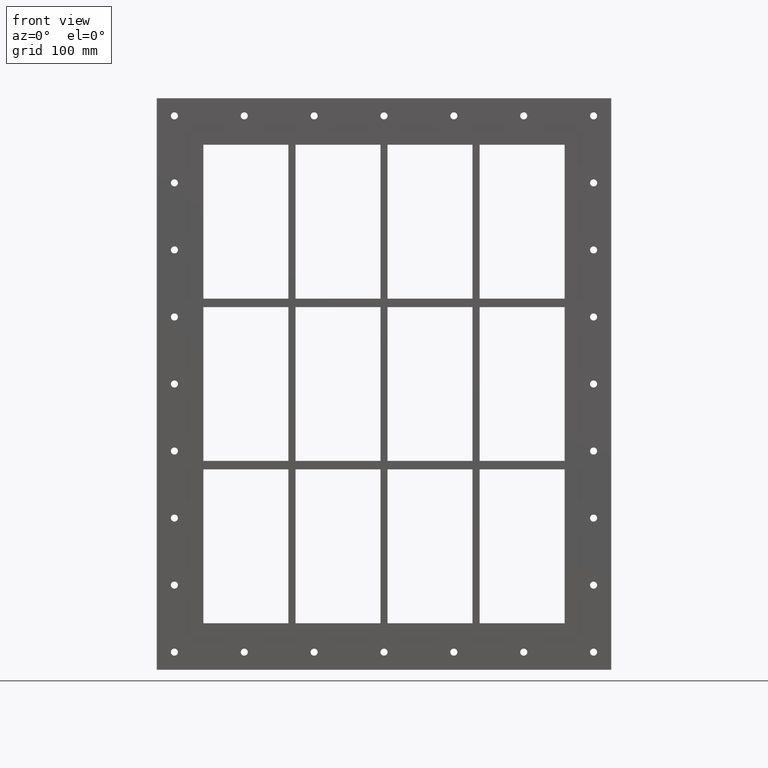
[diagram: clean part render]
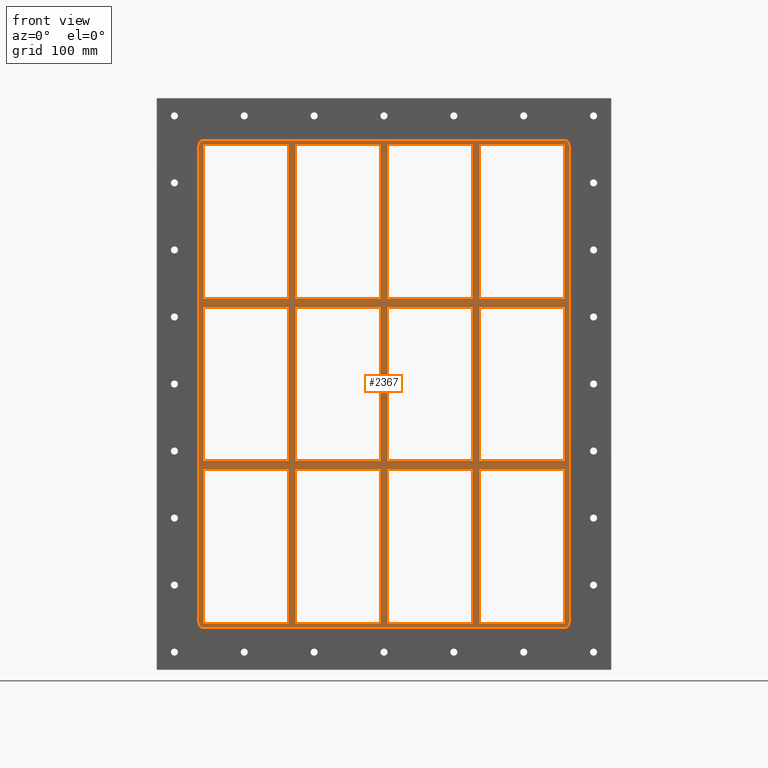
[diagram: same view with one face highlighted and labeled with its STEP entity id]
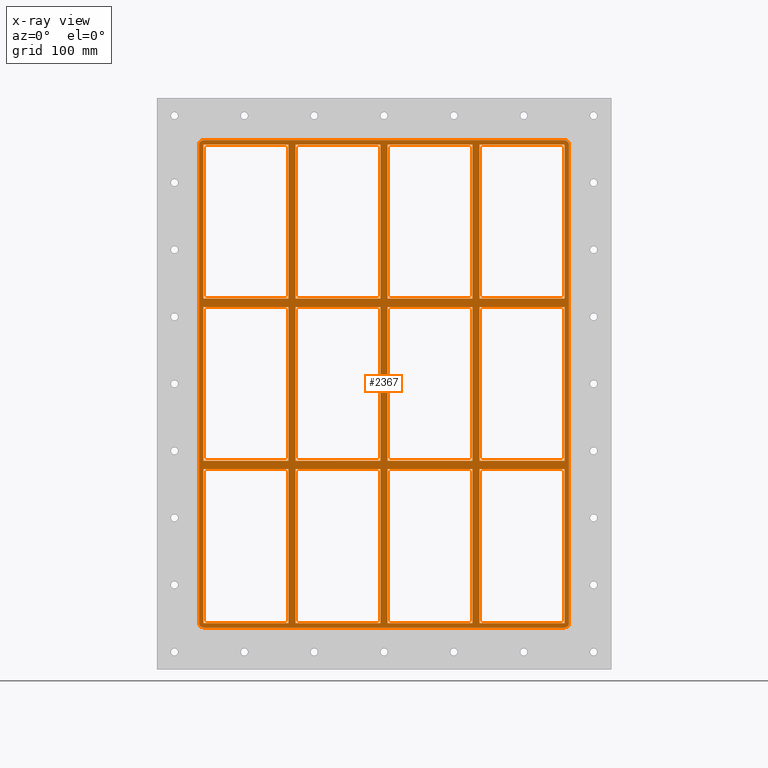
[diagram: x-ray of the same camera — body ghosted, the highlighted face saturated]
A machine part, front view. The second image highlights one B-rep face of the part: STEP entity #2367.
The next image is the same camera in x-ray: the body ghosted, the highlighted face saturated — about 0% of this face is hidden behind the body in this view.
In plain terms, the highlighted planar face has unit normal (0, 1, 0).
Its self-contained STEP definition (entity closure, byte-faithful):
#857=CARTESIAN_POINT('',(-135.50000000000139,-3.0,108.99999999999068));
#858=VERTEX_POINT('',#857);
#867=CARTESIAN_POINT('',(-255.99999999999972,-3.0,108.99999999999068));
#868=VERTEX_POINT('',#867);
#869=CARTESIAN_POINT('',(-135.50000000000136,-3.0,108.99999999999069));
#870=DIRECTION('',(-1.0,0.0,0.0));
#871=VECTOR('',#870,120.49999999999841);
#872=LINE('',#869,#871);
#873=EDGE_CURVE('',#858,#868,#872,.T.);
#897=CARTESIAN_POINT('',(-5.000000000001386,-3.0,108.99999999999071));
#898=VERTEX_POINT('',#897);
#907=CARTESIAN_POINT('',(-125.49999999999272,-3.0,108.99999999999071));
#908=VERTEX_POINT('',#907);
#909=CARTESIAN_POINT('',(-5.000000000001364,-3.0,108.99999999999071));
#910=DIRECTION('',(-1.0,0.0,0.0));
#911=VECTOR('',#910,120.49999999999136);
#912=LINE('',#909,#911);
#913=EDGE_CURVE('',#898,#908,#912,.T.);
#939=CARTESIAN_POINT('',(135.50000000000728,-3.0,108.99999999999073));
#940=VERTEX_POINT('',#939);
#955=CARTESIAN_POINT('',(256.00000000000364,-3.0,108.99999999999075));
#956=VERTEX_POINT('',#955);
#963=CARTESIAN_POINT('',(256.00000000000364,-3.0,108.99999999999075));
#964=DIRECTION('',(-1.0,0.0,0.0));
#965=VECTOR('',#964,120.49999999999636);
#966=LINE('',#963,#965);
#967=EDGE_CURVE('',#956,#940,#966,.T.);
#977=CARTESIAN_POINT('',(125.49999999999862,-3.0,108.99999999999073));
#978=VERTEX_POINT('',#977);
#987=CARTESIAN_POINT('',(5.000000000007283,-3.0,108.99999999999071));
#988=VERTEX_POINT('',#987);
#989=CARTESIAN_POINT('',(125.49999999999864,-3.0,108.99999999999073));
#990=DIRECTION('',(-1.0,0.0,0.0));
#991=VECTOR('',#990,120.49999999999136);
#992=LINE('',#989,#991);
#993=EDGE_CURVE('',#978,#988,#992,.T.);
#1019=CARTESIAN_POINT('',(-135.50000000000139,-3.0,120.99999999999994));
#1020=VERTEX_POINT('',#1019);
#1035=CARTESIAN_POINT('',(-255.99999999999972,-3.0,120.99999999999994));
#1036=VERTEX_POINT('',#1035);
#1043=CARTESIAN_POINT('',(-255.99999999999972,-3.0,120.99999999999994));
#1044=DIRECTION('',(1.0,0.0,0.0));
#1045=VECTOR('',#1044,120.49999999999835);
#1046=LINE('',#1043,#1045);
#1047=EDGE_CURVE('',#1036,#1020,#1046,.T.);
#1057=CARTESIAN_POINT('',(135.50000000000728,-3.0,120.99999999999994));
#1058=VERTEX_POINT('',#1057);
#1067=CARTESIAN_POINT('',(255.99999999999997,-3.0,120.99999999999994));
#1068=VERTEX_POINT('',#1067);
#1069=CARTESIAN_POINT('',(135.50000000000733,-3.0,120.99999999999994));
#1070=DIRECTION('',(1.0,0.0,0.0));
#1071=VECTOR('',#1070,120.49999999999272);
#1072=LINE('',#1069,#1071);
#1073=EDGE_CURVE('',#1058,#1068,#1072,.T.);
#1099=CARTESIAN_POINT('',(-5.000000000001386,-3.0,120.99999999999994));
#1100=VERTEX_POINT('',#1099);
#1115=CARTESIAN_POINT('',(-125.49999999999272,-3.0,120.99999999999994));
#1116=VERTEX_POINT('',#1115);
#1123=CARTESIAN_POINT('',(-125.49999999999272,-3.0,120.99999999999994));
#1124=DIRECTION('',(1.0,0.0,0.0));
#1125=VECTOR('',#1124,120.49999999999136);
#1126=LINE('',#1123,#1125);
#1127=EDGE_CURVE('',#1116,#1100,#1126,.T.);
#1139=CARTESIAN_POINT('',(125.49999999999862,-3.0,120.99999999999994));
#1140=VERTEX_POINT('',#1139);
#1155=CARTESIAN_POINT('',(5.000000000007283,-3.0,120.99999999999994));
#1156=VERTEX_POINT('',#1155);
#1163=CARTESIAN_POINT('',(5.000000000007276,-3.0,120.99999999999994));
#1164=DIRECTION('',(1.0,0.0,0.0));
#1165=VECTOR('',#1164,120.49999999999136);
#1166=LINE('',#1163,#1165);
#1167=EDGE_CURVE('',#1156,#1140,#1166,.T.);
#1186=CARTESIAN_POINT('',(-256.00000000000006,-3.0,339.00000000000011));
#1187=VERTEX_POINT('',#1186);
#1194=CARTESIAN_POINT('',(-256.00000000000006,-3.0,120.99999999999997));
#1195=DIRECTION('',(0.0,0.0,1.0));
#1196=VECTOR('',#1195,218.00000000000014);
#1197=LINE('',#1194,#1196);
#1198=EDGE_CURVE('',#1036,#1187,#1197,.T.);
#1217=CARTESIAN_POINT('',(255.99999999999997,-3.0,-109.00000000000006));
#1218=VERTEX_POINT('',#1217);
#1225=CARTESIAN_POINT('',(256.00000000000006,-3.0,108.99999999999076));
#1226=DIRECTION('',(0.0,0.0,-1.0));
#1227=VECTOR('',#1226,217.99999999999082);
#1228=LINE('',#1225,#1227);
#1229=EDGE_CURVE('',#956,#1218,#1228,.T.);
#1240=CARTESIAN_POINT('',(256.00000000000006,-3.0,339.00000000000011));
#1241=VERTEX_POINT('',#1240);
#1242=CARTESIAN_POINT('',(256.00000000000006,-3.0,339.00000000000011));
#1243=DIRECTION('',(0.0,0.0,-1.0));
#1244=VECTOR('',#1243,218.00000000000017);
#1245=LINE('',#1242,#1244);
#1246=EDGE_CURVE('',#1241,#1068,#1245,.T.);
#1271=CARTESIAN_POINT('',(125.49999999999856,-3.0,339.00000000000011));
#1272=VERTEX_POINT('',#1271);
#1273=CARTESIAN_POINT('',(125.49999999999861,-3.0,120.99999999999994));
#1274=DIRECTION('',(0.0,0.0,1.0));
#1275=VECTOR('',#1274,218.00000000000017);
#1276=LINE('',#1273,#1275);
#1277=EDGE_CURVE('',#1140,#1272,#1276,.T.);
#1310=CARTESIAN_POINT('',(135.50000000000728,-3.0,339.00000000000011));
#1311=VERTEX_POINT('',#1310);
#1318=CARTESIAN_POINT('',(135.50000000000728,-3.0,339.00000000000011));
#1319=DIRECTION('',(0.0,0.0,-1.0));
#1320=VECTOR('',#1319,218.00000000000017);
#1321=LINE('',#1318,#1320);
#1322=EDGE_CURVE('',#1311,#1058,#1321,.T.);
#1333=CARTESIAN_POINT('',(-5.000000000001439,-3.0,339.00000000000011));
#1334=VERTEX_POINT('',#1333);
#1335=CARTESIAN_POINT('',(-5.000000000001387,-3.0,120.99999999999994));
#1336=DIRECTION('',(0.0,0.0,1.0));
#1337=VECTOR('',#1336,218.00000000000017);
#1338=LINE('',#1335,#1337);
#1339=EDGE_CURVE('',#1100,#1334,#1338,.T.);
#1372=CARTESIAN_POINT('',(5.000000000007283,-3.0,339.00000000000011));
#1373=VERTEX_POINT('',#1372);
#1380=CARTESIAN_POINT('',(5.000000000007283,-3.0,339.00000000000011));
#1381=DIRECTION('',(0.0,0.0,-1.0));
#1382=VECTOR('',#1381,218.00000000000017);
#1383=LINE('',#1380,#1382);
#1384=EDGE_CURVE('',#1373,#1156,#1383,.T.);
#1395=CARTESIAN_POINT('',(-135.50000000000145,-3.0,339.00000000000011));
#1396=VERTEX_POINT('',#1395);
#1397=CARTESIAN_POINT('',(-135.50000000000139,-3.0,120.99999999999994));
#1398=DIRECTION('',(0.0,0.0,1.0));
#1399=VECTOR('',#1398,218.00000000000017);
#1400=LINE('',#1397,#1399);
#1401=EDGE_CURVE('',#1020,#1396,#1400,.T.);
#1434=CARTESIAN_POINT('',(-135.50000000000134,-3.0,-109.00000000000006));
#1435=VERTEX_POINT('',#1434);
#1442=CARTESIAN_POINT('',(-135.50000000000134,-3.0,-109.00000000000006));
#1443=DIRECTION('',(0.0,0.0,1.0));
#1444=VECTOR('',#1443,217.99999999999073);
#1445=LINE('',#1442,#1444);
#1446=EDGE_CURVE('',#1435,#858,#1445,.T.);
#1465=CARTESIAN_POINT('',(-125.49999999999272,-3.0,339.00000000000011));
#1466=VERTEX_POINT('',#1465);
#1473=CARTESIAN_POINT('',(-125.49999999999272,-3.0,339.00000000000011));
#1474=DIRECTION('',(0.0,0.0,-1.0));
#1475=VECTOR('',#1474,218.00000000000017);
#1476=LINE('',#1473,#1475);
#1477=EDGE_CURVE('',#1466,#1116,#1476,.T.);
#1831=CARTESIAN_POINT('',(125.49999999999868,-3.0,-109.00000000000006));
#1832=VERTEX_POINT('',#1831);
#1839=CARTESIAN_POINT('',(125.49999999999866,-3.0,-109.00000000000006));
#1840=DIRECTION('',(0.0,0.0,1.0));
#1841=VECTOR('',#1840,217.99999999999079);
#1842=LINE('',#1839,#1841);
#1843=EDGE_CURVE('',#1832,#978,#1842,.T.);
#1853=CARTESIAN_POINT('',(125.49999999999868,-3.0,-121.00000000000929));
#1854=VERTEX_POINT('',#1853);
#1862=CARTESIAN_POINT('',(125.49999999999872,-3.0,-339.0));
#1863=VERTEX_POINT('',#1862);
#1870=CARTESIAN_POINT('',(125.49999999999872,-3.0,-339.0));
#1871=DIRECTION('',(0.0,0.0,1.0));
#1872=VECTOR('',#1871,217.99999999999071);
#1873=LINE('',#1870,#1872);
#1874=EDGE_CURVE('',#1863,#1854,#1873,.T.);
#1885=CARTESIAN_POINT('',(135.50000000000728,-3.0,-109.00000000000006));
#1886=VERTEX_POINT('',#1885);
#1887=CARTESIAN_POINT('',(135.50000000000728,-3.0,108.99999999999073));
#1888=DIRECTION('',(0.0,0.0,-1.0));
#1889=VECTOR('',#1888,217.99999999999079);
#1890=LINE('',#1887,#1889);
#1891=EDGE_CURVE('',#940,#1886,#1890,.T.);
#1908=CARTESIAN_POINT('',(135.50000000000728,-3.0,-121.00000000000925));
#1909=VERTEX_POINT('',#1908);
#1916=CARTESIAN_POINT('',(135.50000000000728,-3.0,-338.99999999998414));
#1917=VERTEX_POINT('',#1916);
#1918=CARTESIAN_POINT('',(135.50000000000728,-3.0,-121.00000000000927));
#1919=DIRECTION('',(0.0,0.0,-1.0));
#1920=VECTOR('',#1919,217.99999999997482);
#1921=LINE('',#1918,#1920);
#1922=EDGE_CURVE('',#1909,#1917,#1921,.T.);
#1941=CARTESIAN_POINT('',(-5.000000000001333,-3.0,-109.00000000000006));
#1942=VERTEX_POINT('',#1941);
#1949=CARTESIAN_POINT('',(-5.000000000001333,-3.0,-109.00000000000006));
#1950=DIRECTION('',(0.0,0.0,1.0));
#1951=VECTOR('',#1950,217.99999999999079);
#1952=LINE('',#1949,#1951);
#1953=EDGE_CURVE('',#1942,#898,#1952,.T.);
#1963=CARTESIAN_POINT('',(-5.000000000001331,-3.0,-121.00000000000929));
#1964=VERTEX_POINT('',#1963);
#1972=CARTESIAN_POINT('',(-5.000000000001279,-3.0,-339.0));
#1973=VERTEX_POINT('',#1972);
#1980=CARTESIAN_POINT('',(-5.000000000001279,-3.0,-339.0));
#1981=DIRECTION('',(0.0,0.0,1.0));
#1982=VECTOR('',#1981,217.99999999999071);
#1983=LINE('',#1980,#1982);
#1984=EDGE_CURVE('',#1973,#1964,#1983,.T.);
#1995=CARTESIAN_POINT('',(5.000000000007283,-3.0,-109.00000000000006));
#1996=VERTEX_POINT('',#1995);
#1997=CARTESIAN_POINT('',(5.000000000007283,-3.0,108.99999999999071));
#1998=DIRECTION('',(0.0,0.0,-1.0));
#1999=VECTOR('',#1998,217.99999999999076);
#2000=LINE('',#1997,#1999);
#2001=EDGE_CURVE('',#988,#1996,#2000,.T.);
#2018=CARTESIAN_POINT('',(5.000000000007283,-3.0,-121.00000000000925));
#2019=VERTEX_POINT('',#2018);
#2026=CARTESIAN_POINT('',(5.000000000007283,-3.0,-338.99999999998414));
#2027=VERTEX_POINT('',#2026);
#2028=CARTESIAN_POINT('',(5.000000000007283,-3.0,-121.00000000000927));
#2029=DIRECTION('',(0.0,0.0,-1.0));
#2030=VECTOR('',#2029,217.99999999997482);
#2031=LINE('',#2028,#2030);
#2032=EDGE_CURVE('',#2019,#2027,#2031,.T.);
#2051=CARTESIAN_POINT('',(-125.49999999999272,-3.0,-338.99999999998414));
#2052=VERTEX_POINT('',#2051);
#2059=CARTESIAN_POINT('',(-5.000000000001279,-3.0,-339.0));
#2060=DIRECTION('',(-1.0,0.0,0.0));
#2061=VECTOR('',#2060,120.49999999999147);
#2062=LINE('',#2059,#2061);
#2063=EDGE_CURVE('',#1973,#2052,#2062,.T.);
#2076=CARTESIAN_POINT('',(125.49999999999874,-3.0,-339.0));
#2077=DIRECTION('',(-1.0,0.0,0.0));
#2078=VECTOR('',#2077,120.49999999999145);
#2079=LINE('',#2076,#2078);
#2080=EDGE_CURVE('',#1863,#2027,#2079,.T.);
#2091=CARTESIAN_POINT('',(256.00000000000006,-3.0,-339.0));
#2092=VERTEX_POINT('',#2091);
#2093=CARTESIAN_POINT('',(256.00000000000006,-3.0,-339.0));
#2094=DIRECTION('',(-1.0,0.0,0.0));
#2095=VECTOR('',#2094,120.49999999999275);
#2096=LINE('',#2093,#2095);
#2097=EDGE_CURVE('',#2092,#1917,#2096,.T.);
#2109=CARTESIAN_POINT('',(7.667306E-015,-3.0,-5.618789E-014));
#2110=DIRECTION('',(0.0,1.0,0.0));
#2111=DIRECTION('',(0.0,0.0,1.0));
#2112=AXIS2_PLACEMENT_3D('',#2109,#2110,#2111);
#2113=PLANE('',#2112);
#2114=CARTESIAN_POINT('',(262.00000000000006,-3.0,-339.00000000000006));
#2115=VERTEX_POINT('',#2114);
#2116=CARTESIAN_POINT('',(256.00000000000011,-3.0,-345.00000000000011));
#2117=VERTEX_POINT('',#2116);
#2118=CARTESIAN_POINT('',(256.00000000000011,-3.0,-339.00000000000006));
#2119=DIRECTION('',(0.0,1.0,0.0));
#2120=DIRECTION('',(0.707106781186539,0.0,-0.707106781186556));
#2121=AXIS2_PLACEMENT_3D('',#2118,#2119,#2120);
#2122=CIRCLE('',#2121,6.000000000000001);
#2123=EDGE_CURVE('',#2115,#2117,#2122,.T.);
#2124=ORIENTED_EDGE('',*,*,#2123,.F.);
#2125=CARTESIAN_POINT('',(262.00000000000006,-3.0,339.0));
#2126=VERTEX_POINT('',#2125);
#2127=CARTESIAN_POINT('',(262.00000000000006,-3.0,-339.0));
#2128=DIRECTION('',(0.0,0.0,1.0));
#2129=VECTOR('',#2128,678.0);
#2130=LINE('',#2127,#2129);
#2131=EDGE_CURVE('',#2115,#2126,#2130,.T.);
#2132=ORIENTED_EDGE('',*,*,#2131,.T.);
#2133=CARTESIAN_POINT('',(256.00000000000006,-3.0,345.0));
#2134=VERTEX_POINT('',#2133);
#2135=CARTESIAN_POINT('',(256.00000000000006,-3.0,339.0));
#2136=DIRECTION('',(0.0,1.0,0.0));
#2137=DIRECTION('',(0.707106781186543,0.0,0.707106781186552));
#2138=AXIS2_PLACEMENT_3D('',#2135,#2136,#2137);
#2139=CIRCLE('',#2138,6.0);
#2140=EDGE_CURVE('',#2134,#2126,#2139,.T.);
#2141=ORIENTED_EDGE('',*,*,#2140,.F.);
#2142=CARTESIAN_POINT('',(-256.0,-3.0,345.0));
#2143=VERTEX_POINT('',#2142);
#2144=CARTESIAN_POINT('',(256.0,-3.0,345.0));
#2145=DIRECTION('',(-1.0,0.0,0.0));
#2146=VECTOR('',#2145,512.0);
#2147=LINE('',#2144,#2146);
#2148=EDGE_CURVE('',#2134,#2143,#2147,.T.);
#2149=ORIENTED_EDGE('',*,*,#2148,.T.);
#2150=CARTESIAN_POINT('',(-262.0,-3.0,338.99999999999989));
#2151=VERTEX_POINT('',#2150);
#2152=CARTESIAN_POINT('',(-256.0,-3.0,338.99999999999989));
#2153=DIRECTION('',(0.0,1.0,0.0));
#2154=DIRECTION('',(-0.707106781186543,0.0,0.707106781186552));
#2155=AXIS2_PLACEMENT_3D('',#2152,#2153,#2154);
#2156=CIRCLE('',#2155,6.0);
#2157=EDGE_CURVE('',#2151,#2143,#2156,.T.);
#2158=ORIENTED_EDGE('',*,*,#2157,.F.);
#2159=CARTESIAN_POINT('',(-262.0,-3.0,-339.00000000000023));
#2160=VERTEX_POINT('',#2159);
#2161=CARTESIAN_POINT('',(-262.0,-3.0,338.99999999999989));
#2162=DIRECTION('',(0.0,0.0,-1.0));
#2163=VECTOR('',#2162,678.0);
#2164=LINE('',#2161,#2163);
#2165=EDGE_CURVE('',#2151,#2160,#2164,.T.);
#2166=ORIENTED_EDGE('',*,*,#2165,.T.);
#2167=CARTESIAN_POINT('',(-256.0,-3.0,-345.00000000000011));
#2168=VERTEX_POINT('',#2167);
#2169=CARTESIAN_POINT('',(-256.0,-3.0,-339.00000000000023));
#2170=DIRECTION('',(0.0,1.0,0.0));
#2171=DIRECTION('',(-0.707106781186552,0.0,-0.707106781186543));
#2172=AXIS2_PLACEMENT_3D('',#2169,#2170,#2171);
#2173=CIRCLE('',#2172,6.000000000000001);
#2174=EDGE_CURVE('',#2168,#2160,#2173,.T.);
#2175=ORIENTED_EDGE('',*,*,#2174,.F.);
#2176=CARTESIAN_POINT('',(-256.0,-3.0,-345.00000000000011));
#2177=DIRECTION('',(1.0,0.0,0.0));
#2178=VECTOR('',#2177,512.0);
#2179=LINE('',#2176,#2178);
#2180=EDGE_CURVE('',#2168,#2117,#2179,.T.);
#2181=ORIENTED_EDGE('',*,*,#2180,.T.);
#2182=EDGE_LOOP('',(#2124,#2132,#2141,#2149,#2158,#2166,#2175,#2181));
#2183=FACE_OUTER_BOUND('',#2182,.T.);
#2184=ORIENTED_EDGE('',*,*,#1198,.T.);
#2185=CARTESIAN_POINT('',(-256.00000000000006,-3.0,339.00000000000006));
#2186=DIRECTION('',(1.0,0.0,0.0));
#2187=VECTOR('',#2186,120.49999999999861);
#2188=LINE('',#2185,#2187);
#2189=EDGE_CURVE('',#1187,#1396,#2188,.T.);
#2190=ORIENTED_EDGE('',*,*,#2189,.T.);
#2191=ORIENTED_EDGE('',*,*,#1401,.F.);
#2192=ORIENTED_EDGE('',*,*,#1047,.F.);
#2193=EDGE_LOOP('',(#2184,#2190,#2191,#2192));
#2194=FACE_BOUND('',#2193,.T.);
#2195=ORIENTED_EDGE('',*,*,#1229,.T.);
#2196=CARTESIAN_POINT('',(135.50000000000733,-3.0,-109.00000000000006));
#2197=DIRECTION('',(1.0,0.0,0.0));
#2198=VECTOR('',#2197,120.49999999999272);
#2199=LINE('',#2196,#2198);
#2200=EDGE_CURVE('',#1886,#1218,#2199,.T.);
#2201=ORIENTED_EDGE('',*,*,#2200,.F.);
#2202=ORIENTED_EDGE('',*,*,#1891,.F.);
#2203=ORIENTED_EDGE('',*,*,#967,.F.);
#2204=EDGE_LOOP('',(#2195,#2201,#2202,#2203));
#2205=FACE_BOUND('',#2204,.T.);
#2206=ORIENTED_EDGE('',*,*,#1843,.F.);
#2207=CARTESIAN_POINT('',(5.000000000007276,-3.0,-109.00000000000006));
#2208=DIRECTION('',(1.0,0.0,0.0));
#2209=VECTOR('',#2208,120.49999999999142);
#2210=LINE('',#2207,#2209);
#2211=EDGE_CURVE('',#1996,#1832,#2210,.T.);
#2212=ORIENTED_EDGE('',*,*,#2211,.F.);
#2213=ORIENTED_EDGE('',*,*,#2001,.F.);
#2214=ORIENTED_EDGE('',*,*,#993,.F.);
#2215=EDGE_LOOP('',(#2206,#2212,#2213,#2214));
#2216=FACE_BOUND('',#2215,.T.);
#2217=ORIENTED_EDGE('',*,*,#1953,.F.);
#2218=CARTESIAN_POINT('',(-125.49999999999272,-3.0,-109.00000000000006));
#2219=VERTEX_POINT('',#2218);
#2220=CARTESIAN_POINT('',(-125.49999999999272,-3.0,-109.00000000000006));
#2221=DIRECTION('',(1.0,0.0,0.0));
#2222=VECTOR('',#2221,120.49999999999139);
#2223=LINE('',#2220,#2222);
#2224=EDGE_CURVE('',#2219,#1942,#2223,.T.);
#2225=ORIENTED_EDGE('',*,*,#2224,.F.);
#2226=CARTESIAN_POINT('',(-125.49999999999272,-3.0,108.99999999999071));
#2227=DIRECTION('',(0.0,0.0,-1.0));
#2228=VECTOR('',#2227,217.99999999999076);
#2229=LINE('',#2226,#2228);
#2230=EDGE_CURVE('',#908,#2219,#2229,.T.);
#2231=ORIENTED_EDGE('',*,*,#2230,.F.);
#2232=ORIENTED_EDGE('',*,*,#913,.F.);
#2233=EDGE_LOOP('',(#2217,#2225,#2231,#2232));
#2234=FACE_BOUND('',#2233,.T.);
#2235=ORIENTED_EDGE('',*,*,#1167,.F.);
#2236=ORIENTED_EDGE('',*,*,#1384,.F.);
#2237=CARTESIAN_POINT('',(5.000000000007276,-3.0,339.00000000000006));
#2238=DIRECTION('',(1.0,0.0,0.0));
#2239=VECTOR('',#2238,120.49999999999127);
#2240=LINE('',#2237,#2239);
#2241=EDGE_CURVE('',#1373,#1272,#2240,.T.);
#2242=ORIENTED_EDGE('',*,*,#2241,.T.);
#2243=ORIENTED_EDGE('',*,*,#1277,.F.);
#2244=EDGE_LOOP('',(#2235,#2236,#2242,#2243));
#2245=FACE_BOUND('',#2244,.T.);
#2246=ORIENTED_EDGE('',*,*,#1127,.F.);
#2247=ORIENTED_EDGE('',*,*,#1477,.F.);
#2248=CARTESIAN_POINT('',(-125.49999999999272,-3.0,339.00000000000006));
#2249=DIRECTION('',(1.0,0.0,0.0));
#2250=VECTOR('',#2249,120.49999999999127);
#2251=LINE('',#2248,#2250);
#2252=EDGE_CURVE('',#1466,#1334,#2251,.T.);
#2253=ORIENTED_EDGE('',*,*,#2252,.T.);
#2254=ORIENTED_EDGE('',*,*,#1339,.F.);
#2255=EDGE_LOOP('',(#2246,#2247,#2253,#2254));
#2256=FACE_BOUND('',#2255,.T.);
#2257=ORIENTED_EDGE('',*,*,#873,.F.);
#2258=ORIENTED_EDGE('',*,*,#1446,.F.);
#2259=CARTESIAN_POINT('',(-255.99999999999972,-3.0,-109.00000000000006));
#2260=VERTEX_POINT('',#2259);
#2261=CARTESIAN_POINT('',(-255.99999999999972,-3.0,-109.00000000000006));
#2262=DIRECTION('',(1.0,0.0,0.0));
#2263=VECTOR('',#2262,120.49999999999841);
#2264=LINE('',#2261,#2263);
#2265=EDGE_CURVE('',#2260,#1435,#2264,.T.);
#2266=ORIENTED_EDGE('',*,*,#2265,.F.);
#2267=CARTESIAN_POINT('',(-256.00000000000006,-3.0,-109.00000000000006));
#2268=DIRECTION('',(0.0,0.0,1.0));
#2269=VECTOR('',#2268,217.99999999999071);
#2270=LINE('',#2267,#2269);
#2271=EDGE_CURVE('',#2260,#868,#2270,.T.);
#2272=ORIENTED_EDGE('',*,*,#2271,.T.);
#2273=EDGE_LOOP('',(#2257,#2258,#2266,#2272));
#2274=FACE_BOUND('',#2273,.T.);
#2275=ORIENTED_EDGE('',*,*,#1073,.F.);
#2276=ORIENTED_EDGE('',*,*,#1322,.F.);
#2277=CARTESIAN_POINT('',(135.5000000000073,-3.0,339.00000000000006));
#2278=DIRECTION('',(1.0,0.0,0.0));
#2279=VECTOR('',#2278,120.4999999999927);
#2280=LINE('',#2277,#2279);
#2281=EDGE_CURVE('',#1311,#1241,#2280,.T.);
#2282=ORIENTED_EDGE('',*,*,#2281,.T.);
#2283=ORIENTED_EDGE('',*,*,#1246,.T.);
#2284=EDGE_LOOP('',(#2275,#2276,#2282,#2283));
#2285=FACE_BOUND('',#2284,.T.);
#2286=ORIENTED_EDGE('',*,*,#2080,.T.);
#2287=ORIENTED_EDGE('',*,*,#2032,.F.);
#2288=CARTESIAN_POINT('',(125.49999999999866,-3.0,-121.00000000000927));
#2289=DIRECTION('',(-1.0,0.0,0.0));
#2290=VECTOR('',#2289,120.49999999999139);
#2291=LINE('',#2288,#2290);
#2292=EDGE_CURVE('',#1854,#2019,#2291,.T.);
#2293=ORIENTED_EDGE('',*,*,#2292,.F.);
#2294=ORIENTED_EDGE('',*,*,#1874,.F.);
#2295=EDGE_LOOP('',(#2286,#2287,#2293,#2294));
#2296=FACE_BOUND('',#2295,.T.);
#2297=ORIENTED_EDGE('',*,*,#2063,.T.);
#2298=CARTESIAN_POINT('',(-125.49999999999272,-3.0,-121.00000000000931));
#2299=VERTEX_POINT('',#2298);
#2300=CARTESIAN_POINT('',(-125.49999999999272,-3.0,-121.00000000000932));
#2301=DIRECTION('',(0.0,0.0,-1.0));
#2302=VECTOR('',#2301,217.99999999997476);
#2303=LINE('',#2300,#2302);
#2304=EDGE_CURVE('',#2299,#2052,#2303,.T.);
#2305=ORIENTED_EDGE('',*,*,#2304,.F.);
#2306=CARTESIAN_POINT('',(-5.000000000001307,-3.0,-121.00000000000929));
#2307=DIRECTION('',(-1.0,0.0,0.0));
#2308=VECTOR('',#2307,120.49999999999142);
#2309=LINE('',#2306,#2308);
#2310=EDGE_CURVE('',#1964,#2299,#2309,.T.);
#2311=ORIENTED_EDGE('',*,*,#2310,.F.);
#2312=ORIENTED_EDGE('',*,*,#1984,.F.);
#2313=EDGE_LOOP('',(#2297,#2305,#2311,#2312));
#2314=FACE_BOUND('',#2313,.T.);
#2315=ORIENTED_EDGE('',*,*,#1922,.F.);
#2316=CARTESIAN_POINT('',(256.00000000000364,-3.0,-121.00000000000925));
#2317=VERTEX_POINT('',#2316);
#2318=CARTESIAN_POINT('',(256.00000000000364,-3.0,-121.00000000000925));
#2319=DIRECTION('',(-1.0,0.0,0.0));
#2320=VECTOR('',#2319,120.49999999999636);
#2321=LINE('',#2318,#2320);
#2322=EDGE_CURVE('',#2317,#1909,#2321,.T.);
#2323=ORIENTED_EDGE('',*,*,#2322,.F.);
#2324=CARTESIAN_POINT('',(256.00000000000006,-3.0,-121.00000000000927));
#2325=DIRECTION('',(0.0,0.0,-1.0));
#2326=VECTOR('',#2325,217.99999999999068);
#2327=LINE('',#2324,#2326);
#2328=EDGE_CURVE('',#2317,#2092,#2327,.T.);
#2329=ORIENTED_EDGE('',*,*,#2328,.T.);
#2330=ORIENTED_EDGE('',*,*,#2097,.T.);
#2331=EDGE_LOOP('',(#2315,#2323,#2329,#2330));
#2332=FACE_BOUND('',#2331,.T.);
#2333=CARTESIAN_POINT('',(-135.50000000000131,-3.0,-121.00000000000931));
#2334=VERTEX_POINT('',#2333);
#2335=CARTESIAN_POINT('',(-255.99999999999972,-3.0,-121.00000000000932));
#2336=VERTEX_POINT('',#2335);
#2337=CARTESIAN_POINT('',(-135.50000000000131,-3.0,-121.00000000000931));
#2338=DIRECTION('',(-1.0,0.0,0.0));
#2339=VECTOR('',#2338,120.49999999999847);
#2340=LINE('',#2337,#2339);
#2341=EDGE_CURVE('',#2334,#2336,#2340,.T.);
#2342=ORIENTED_EDGE('',*,*,#2341,.F.);
#2343=CARTESIAN_POINT('',(-135.50000000000128,-3.0,-339.0));
#2344=VERTEX_POINT('',#2343);
#2345=CARTESIAN_POINT('',(-135.50000000000128,-3.0,-339.0));
#2346=DIRECTION('',(0.0,0.0,1.0));
#2347=VECTOR('',#2346,217.99999999999068);
#2348=LINE('',#2345,#2347);
#2349=EDGE_CURVE('',#2344,#2334,#2348,.T.);
#2350=ORIENTED_EDGE('',*,*,#2349,.F.);
#2351=CARTESIAN_POINT('',(-256.00000000000006,-3.0,-339.0));
#2352=VERTEX_POINT('',#2351);
#2353=CARTESIAN_POINT('',(-135.50000000000128,-3.0,-339.0));
#2354=DIRECTION('',(-1.0,0.0,0.0));
#2355=VECTOR('',#2354,120.49999999999872);
#2356=LINE('',#2353,#2355);
#2357=EDGE_CURVE('',#2344,#2352,#2356,.T.);
#2358=ORIENTED_EDGE('',*,*,#2357,.T.);
#2359=CARTESIAN_POINT('',(-256.00000000000006,-3.0,-339.0));
#2360=DIRECTION('',(0.0,0.0,1.0));
#2361=VECTOR('',#2360,217.99999999999068);
#2362=LINE('',#2359,#2361);
#2363=EDGE_CURVE('',#2352,#2336,#2362,.T.);
#2364=ORIENTED_EDGE('',*,*,#2363,.T.);
#2365=EDGE_LOOP('',(#2342,#2350,#2358,#2364));
#2366=FACE_BOUND('',#2365,.T.);
#2367=ADVANCED_FACE('',(#2183,#2194,#2205,#2216,#2234,#2245,#2256,#2274,#2285,#2296,#2314,#2332,#2366),#2113,.F.);